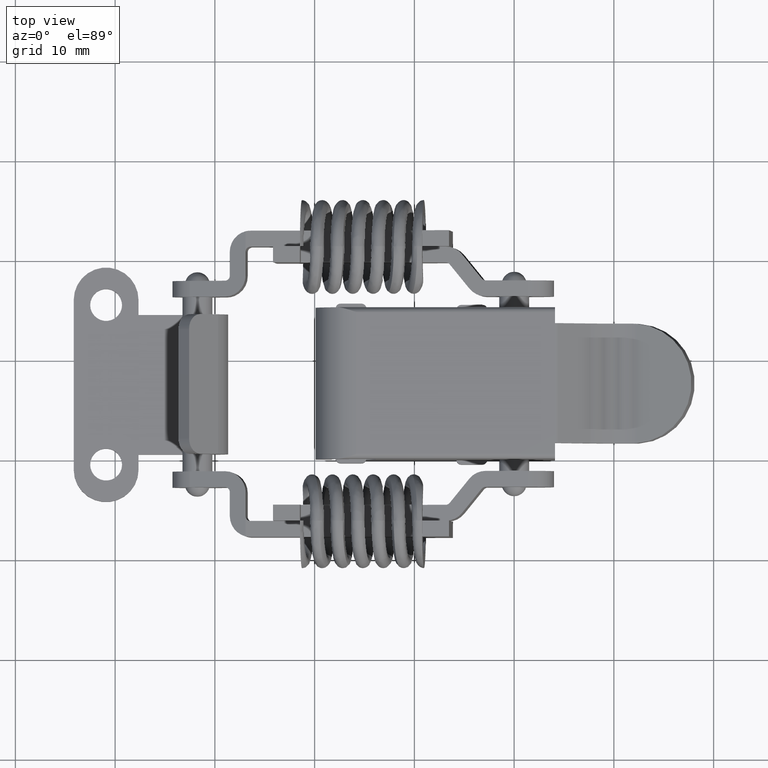
[diagram: clean part render]
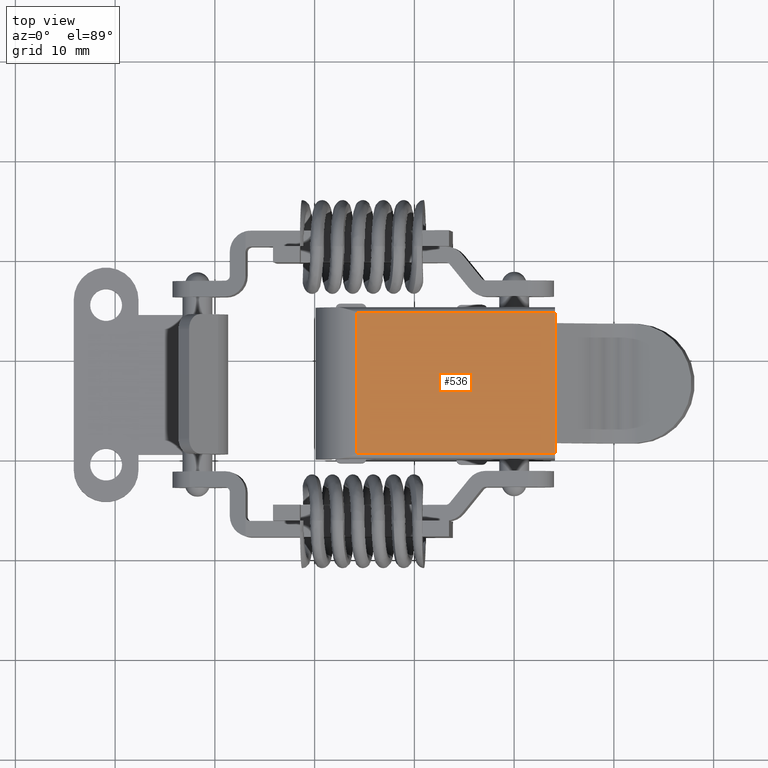
[diagram: same view with one face highlighted and labeled with its STEP entity id]
A machine part, top view. The second image highlights one B-rep face of the part: STEP entity #536.
In plain terms, the highlighted planar face has unit normal (0, 0, 1).
Its self-contained STEP definition (entity closure, byte-faithful):
#536=ADVANCED_FACE('',(#3091),#3090,.T.);
#3090=PLANE('',#6344);
#3091=FACE_OUTER_BOUND('',#6345,.T.);
#6341=CARTESIAN_POINT('',(-1.77900000000E+01,-9.20000000283E-01,6.00000000000E+00));
#6342=DIRECTION('',(0.00000000000E+00,0.00000000000E+00,1.00000000000E+00));
#6343=DIRECTION('',(1.00000000000E+00,0.00000000000E+00,-0.00000000000E+00));
#6344=AXIS2_PLACEMENT_3D('',#6341,#6342,#6343);
#6345=EDGE_LOOP('',(#13822,#13823,#13824,#13825,#13826,#13827));
#13822=ORIENTED_EDGE('',*,*,#15118,.T.);
#13823=ORIENTED_EDGE('',*,*,#15136,.T.);
#13824=ORIENTED_EDGE('',*,*,#15137,.F.);
#13825=ORIENTED_EDGE('',*,*,#15138,.F.);
#13826=ORIENTED_EDGE('',*,*,#15088,.F.);
#13827=ORIENTED_EDGE('',*,*,#15101,.T.);
#15088=EDGE_CURVE('',#19339,#19346,#19347,.T.);
#15101=EDGE_CURVE('',#19339,#19427,#19434,.T.);
#15118=EDGE_CURVE('',#19427,#19534,#19541,.T.);
#15136=EDGE_CURVE('',#19534,#19658,#19659,.T.);
#15137=EDGE_CURVE('',#19665,#19658,#19666,.T.);
#15138=EDGE_CURVE('',#19346,#19665,#19672,.T.);
#19339=VERTEX_POINT('',#24117);
#19346=VERTEX_POINT('',#24121);
#19347=LINE('',#24122,#24123);
#19427=VERTEX_POINT('',#24169);
#19434=LINE('',#24174,#24175);
#19534=VERTEX_POINT('',#24233);
#19541=LINE('',#24238,#24239);
#19658=VERTEX_POINT('',#24305);
#19659=LINE('',#24306,#24307);
#19665=VERTEX_POINT('',#24309);
#19666=LINE('',#24310,#24311);
#19672=LINE('',#24313,#24314);
#24117=CARTESIAN_POINT('',(4.10000000000E+00,1.59999999974E+00,6.00000000000E+00));
#24121=CARTESIAN_POINT('',(4.10000000000E+00,4.99999999743E-01,6.00000000000E+00));
#24122=CARTESIAN_POINT('',(4.10000000000E+00,1.59999999974E+00,6.00000000000E+00));
#24123=VECTOR('',#24124,1.10000000000E+00);
#24124=DIRECTION('',(0.00000000000E+00,-1.00000000000E+00,0.00000000000E+00));
#24169=CARTESIAN_POINT('',(4.10000000000E+00,1.36000000000E+01,6.00000000000E+00));
#24174=CARTESIAN_POINT('',(4.10000000000E+00,1.59999999974E+00,6.00000000000E+00));
#24175=VECTOR('',#24176,1.20000000003E+01);
#24176=DIRECTION('',(0.00000000000E+00,1.00000000000E+00,0.00000000000E+00));
#24233=CARTESIAN_POINT('',(4.10000000000E+00,1.47000000000E+01,6.00000000000E+00));
#24238=CARTESIAN_POINT('',(4.10000000000E+00,1.36000000000E+01,6.00000000000E+00));
#24239=VECTOR('',#24240,1.10000000000E+00);
#24240=DIRECTION('',(0.00000000000E+00,1.00000000000E+00,0.00000000000E+00));
#24305=CARTESIAN_POINT('',(-1.58000000000E+01,1.47000000000E+01,6.00000000000E+00));
#24306=CARTESIAN_POINT('',(4.10000000000E+00,1.47000000000E+01,6.00000000000E+00));
#24307=VECTOR('',#24308,1.99000000000E+01);
#24308=DIRECTION('',(-1.00000000000E+00,0.00000000000E+00,0.00000000000E+00));
#24309=CARTESIAN_POINT('',(-1.58000000000E+01,4.99999999743E-01,6.00000000000E+00));
#24310=CARTESIAN_POINT('',(-1.58000000000E+01,4.99999999743E-01,6.00000000000E+00));
#24311=VECTOR('',#24312,1.42000000003E+01);
#24312=DIRECTION('',(0.00000000000E+00,1.00000000000E+00,0.00000000000E+00));
#24313=CARTESIAN_POINT('',(4.10000000000E+00,4.99999999743E-01,6.00000000000E+00));
#24314=VECTOR('',#24315,1.99000000000E+01);
#24315=DIRECTION('',(-1.00000000000E+00,0.00000000000E+00,0.00000000000E+00));